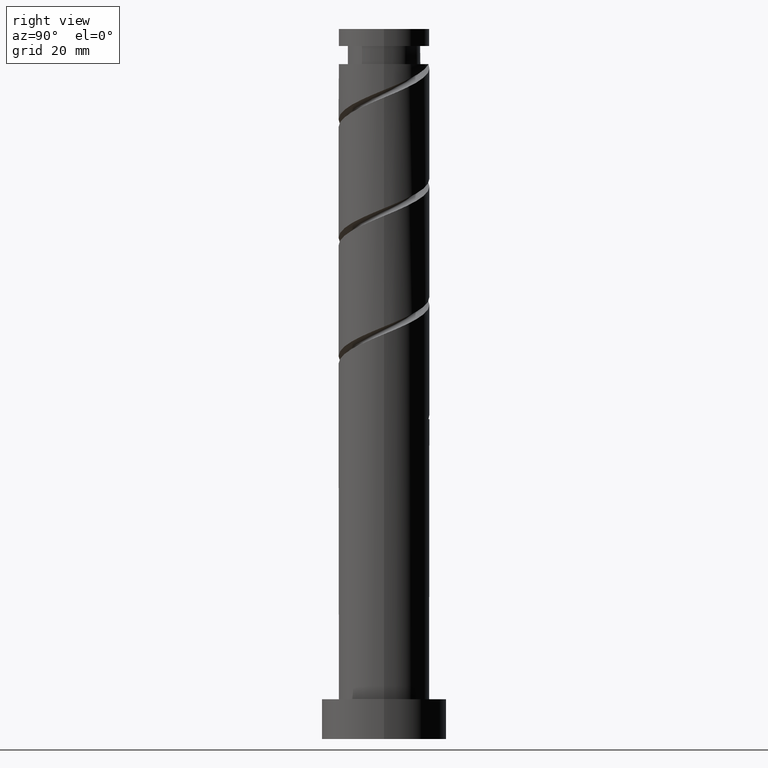
[diagram: clean part render]
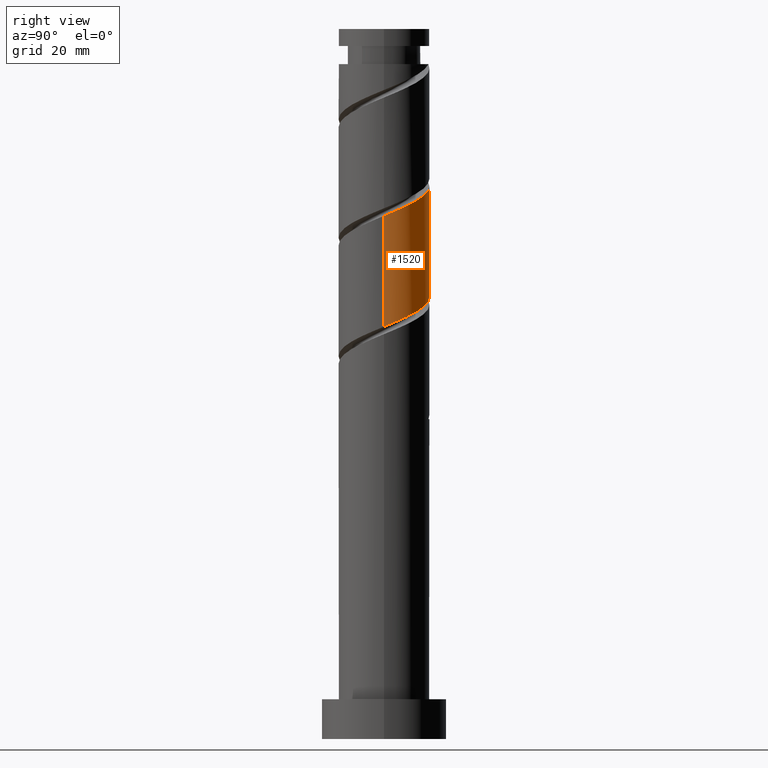
[diagram: same view with one face highlighted and labeled with its STEP entity id]
A machine part, right view. The second image highlights one B-rep face of the part: STEP entity #1520.
In plain terms, the highlighted cylindrical surface (partial cylindrical patch) has radius 8 mm, axis along (-0, -0, -1).
Its self-contained STEP definition (entity closure, byte-faithful):
#26 = ORIENTED_EDGE ( 'NONE', *, *, #1425, .T. ) ;
#30 = CARTESIAN_POINT ( 'NONE',  ( -0.9086303787922844766, 7.948231931362834679, 78.19204006689466269 ) ) ;
#35 = CARTESIAN_POINT ( 'NONE',  ( 0.9086303787922892505, 7.948231931362848002, 96.94204006689464848 ) ) ;
#44 = CARTESIAN_POINT ( 'NONE',  ( 3.320297584678871150, 7.278435542695688376, 95.90037340022796286 ) ) ;
#65 = CARTESIAN_POINT ( 'NONE',  ( -3.936756093006897217, 6.964334244145184982, 99.02537340022796286 ) ) ;
#89 = EDGE_LOOP ( 'NONE', ( #545, #26, #317, #927 ) ) ;
#98 = LINE ( 'NONE', #1048, #875 ) ;
#133 = FACE_OUTER_BOUND ( 'NONE', #89, .T. ) ;
#144 = CARTESIAN_POINT ( 'NONE',  ( 7.804319017355950017, 2.167506644810793137, 73.50454006689464848 ) ) ;
#223 = CARTESIAN_POINT ( 'NONE',  ( -7.587855154630277710, 2.833713911514956330, 81.83787340022796286 ) ) ;
#233 = CARTESIAN_POINT ( 'NONE',  ( 8.000000000000014211, 5.037682535157128258E-15, 92.11057095875773371 ) ) ;
#234 = CARTESIAN_POINT ( 'NONE',  ( -3.320297584678863156, 7.278435542695677718, 79.23370673356129146 ) ) ;
#241 = AXIS2_PLACEMENT_3D ( 'NONE', #355, #569, #816 ) ;
#270 = CARTESIAN_POINT ( 'NONE',  ( 0.3502458872262265710, 8.092144845369723782, 77.67120673356133409 ) ) ;
#283 = CARTESIAN_POINT ( 'NONE',  ( 5.406950929103509829, 5.896175171267123538, 94.85870673356129146 ) ) ;
#285 = CARTESIAN_POINT ( 'NONE',  ( 5.039798274498828334, 6.340813333660067386, 75.58787340022797707 ) ) ;
#290 = CARTESIAN_POINT ( 'NONE',  ( 6.340813333660081597, 5.039798274498832775, 94.33787340022797707 ) ) ;
#304 = CARTESIAN_POINT ( 'NONE',  ( 7.587855154630291921, 2.833713911514957662, 93.29620673356134830 ) ) ;
#317 = ORIENTED_EDGE ( 'NONE', *, *, #522, .F. ) ;
#319 = CARTESIAN_POINT ( 'NONE',  ( -8.000000000000000000, 0.000000000000000000, 125.0000000000000000 ) ) ;
#342 = CARTESIAN_POINT ( 'NONE',  ( -8.000000000000000000, 0.8040302522073736746, 82.68920459962373570 ) ) ;
#349 = CARTESIAN_POINT ( 'NONE',  ( -8.000000000000000000, 8.156247914063984524E-15, 83.02350917503156325 ) ) ;
#351 = CARTESIAN_POINT ( 'NONE',  ( -4.473088524546930955, 6.752552068035405419, 79.75454006689466269 ) ) ;
#355 = CARTESIAN_POINT ( 'NONE',  ( 0.000000000000000000, 0.000000000000000000, 125.0000000000000000 ) ) ;
#377 = CARTESIAN_POINT ( 'NONE',  ( 7.948231931362834679, 0.9086303787922832553, 72.98370673356134830 ) ) ;
#398 = CARTESIAN_POINT ( 'NONE',  ( 7.840000000000014069, 1.591979899370590923, 92.77537340022794865 ) ) ;
#436 = DIRECTION ( 'NONE',  ( -0.000000000000000000, -0.000000000000000000, -1.000000000000000000 ) ) ;
#469 = CARTESIAN_POINT ( 'NONE',  ( -6.340813333660067386, 5.039798274498824782, 80.79620673356127725 ) ) ;
#474 =( BOUNDED_CURVE ( )  B_SPLINE_CURVE ( 2, ( #1439, #342, #1447, #223, #586, #469, #962, #351, #234, #722, #30, #270, #519, #1489, #1387, #285, #628, #1475, #655, #144, #377, #878, #1506 ),
 .UNSPECIFIED., .F., .T. ) 
 B_SPLINE_CURVE_WITH_KNOTS ( ( 3, 2, 2, 2, 2, 2, 2, 2, 2, 2, 2, 3 ),
 ( 0.6795322023138552492, 0.6875000000000000000, 0.6999999999999999556, 0.7125000000000000222, 0.7249999999999999778, 0.7375000000000000444, 0.7500000000000000000, 0.7624999999999999556, 0.7750000000000000222, 0.7874999999999999778, 0.8000000000000000444, 0.8045322023138552492 ),
 .UNSPECIFIED. ) 
 CURVE ( )  GEOMETRIC_REPRESENTATION_ITEM ( )  RATIONAL_B_SPLINE_CURVE ( ( 0.9039174447099321830, 0.9019565955404615920, 0.9090909090909099488, 0.8978984914501261239, 0.9090909090909099488, 0.8978984914501261239, 0.9090909090909099488, 0.8978984914501261239, 0.9090909090909099488, 0.8978984914501261239, 0.9090909090909099488, 0.8978984914501261239, 0.9090909090909099488, 0.8978984914501261239, 0.9090909090909099488, 0.8978984914501261239, 0.9090909090909099488, 0.8978984914501261239, 0.9090909090909099488, 0.8978984914501261239, 0.9090909090909099488, 0.9050328050005743696, 0.9039174447099321830 ) ) 
 REPRESENTATION_ITEM ( '' )  );
#516 = CARTESIAN_POINT ( 'NONE',  ( 8.000000000000014211, 5.037682535157128258E-15, 92.11057095875773371 ) ) ;
#519 = CARTESIAN_POINT ( 'NONE',  ( 1.591979899370593143, 7.840000000000001634, 77.15037340022796286 ) ) ;
#522 = EDGE_CURVE ( 'NONE', #1129, #979, #474, .T. ) ;
#525 = CARTESIAN_POINT ( 'NONE',  ( -1.591979899370590479, 7.840000000000014069, 97.98370673356130567 ) ) ;
#541 = CARTESIAN_POINT ( 'NONE',  ( -0.3502458872262239065, 8.092144845369736217, 97.46287340022796286 ) ) ;
#545 = ORIENTED_EDGE ( 'NONE', *, *, #1144, .F. ) ;
#547 = CARTESIAN_POINT ( 'NONE',  ( 8.000000000000010658, 0.8040302522073770053, 92.44487553416558967 ) ) ;
#569 = DIRECTION ( 'NONE',  ( -0.000000000000000000, -0.000000000000000000, -1.000000000000000000 ) ) ;
#586 = CARTESIAN_POINT ( 'NONE',  ( -6.964334244145172548, 3.936756093006892776, 81.31704006689464848 ) ) ;
#616 = CYLINDRICAL_SURFACE ( 'NONE', #241, 8.000000000000000000 ) ;
#628 = CARTESIAN_POINT ( 'NONE',  ( 5.896175171267119097, 5.406950929103498282, 75.06704006689467690 ) ) ;
#649 =( BOUNDED_CURVE ( )  B_SPLINE_CURVE ( 2, ( #516, #547, #398, #304, #1383, #290, #283, #1040, #44, #784, #35, #541, #525, #1033, #65, #1018, #775, #890, #790, #1511, #1263, #1270, #905 ),
 .UNSPECIFIED., .F., .T. ) 
 B_SPLINE_CURVE_WITH_KNOTS ( ( 3, 2, 2, 2, 2, 2, 2, 2, 2, 2, 2, 3 ),
 ( 0.4295322023138553047, 0.4375000000000000000, 0.4499999999999999556, 0.4625000000000000222, 0.4749999999999999778, 0.4875000000000000444, 0.5000000000000000000, 0.5124999999999999556, 0.5250000000000000222, 0.5374999999999999778, 0.5500000000000000444, 0.5545322023138553602 ),
 .UNSPECIFIED. ) 
 CURVE ( )  GEOMETRIC_REPRESENTATION_ITEM ( )  RATIONAL_B_SPLINE_CURVE ( ( 0.9039174447099390663, 0.9019565955404684754, 0.9090909090909168322, 0.8978984914501328962, 0.9090909090909168322, 0.8978984914501328962, 0.9090909090909168322, 0.8978984914501328962, 0.9090909090909168322, 0.8978984914501328962, 0.9090909090909168322, 0.8978984914501328962, 0.9090909090909168322, 0.8978984914501328962, 0.9090909090909168322, 0.8978984914501328962, 0.9090909090909168322, 0.8978984914501328962, 0.9090909090909168322, 0.8978984914501328962, 0.9090909090909168322, 0.9050328050005810310, 0.9039174447099389553 ) ) 
 REPRESENTATION_ITEM ( '' )  );
#655 = CARTESIAN_POINT ( 'NONE',  ( 7.278435542695677718, 3.320297584678860936, 74.02537340022796286 ) ) ;
#722 = CARTESIAN_POINT ( 'NONE',  ( -2.167506644810794469, 7.804319017355950017, 78.71287340022797707 ) ) ;
#775 = CARTESIAN_POINT ( 'NONE',  ( -5.896175171267125315, 5.406950929103508940, 100.0670400668946485 ) ) ;
#784 = CARTESIAN_POINT ( 'NONE',  ( 2.167506644810801575, 7.804319017355962451, 96.42120673356131988 ) ) ;
#790 = CARTESIAN_POINT ( 'NONE',  ( -7.278435542695688376, 3.320297584678869374, 101.1087067335613199 ) ) ;
#816 = DIRECTION ( 'NONE',  ( -1.000000000000000000, 0.000000000000000000, 0.000000000000000000 ) ) ;
#837 = CARTESIAN_POINT ( 'NONE',  ( -8.000000000000014211, -1.919117156250334311E-15, 102.5272376254243767 ) ) ;
#850 = CARTESIAN_POINT ( 'NONE',  ( 8.000000000000000000, -9.175778903321979631E-15, 72.60684250836490605 ) ) ;
#875 = VECTOR ( 'NONE', #436, 1000.000000000000000 ) ;
#878 = CARTESIAN_POINT ( 'NONE',  ( 8.000000000000001776, 0.4557898995714582679, 72.79635359757220670 ) ) ;
#890 = CARTESIAN_POINT ( 'NONE',  ( -6.752552068035418742, 4.473088524546940725, 100.5878734002279913 ) ) ;
#905 = CARTESIAN_POINT ( 'NONE',  ( -8.000000000000014211, -1.919117156250334311E-15, 102.5272376254243767 ) ) ;
#927 = ORIENTED_EDGE ( 'NONE', *, *, #1433, .F. ) ;
#937 = DIRECTION ( 'NONE',  ( -0.000000000000000000, -0.000000000000000000, -1.000000000000000000 ) ) ;
#962 = CARTESIAN_POINT ( 'NONE',  ( -5.406950929103500947, 5.896175171267117321, 80.27537340022796286 ) ) ;
#979 = VERTEX_POINT ( 'NONE', #850 ) ;
#1018 = CARTESIAN_POINT ( 'NONE',  ( -5.039798274498833663, 6.340813333660080708, 99.54620673356131988 ) ) ;
#1033 = CARTESIAN_POINT ( 'NONE',  ( -2.833713911514958994, 7.587855154630291921, 98.50454006689466269 ) ) ;
#1040 = CARTESIAN_POINT ( 'NONE',  ( 4.473088524546940725, 6.752552068035416077, 95.37954006689464848 ) ) ;
#1048 = CARTESIAN_POINT ( 'NONE',  ( 8.000000000000000000, 9.797174393178825657E-16, 125.0000000000000000 ) ) ;
#1079 = VECTOR ( 'NONE', #937, 1000.000000000000000 ) ;
#1129 = VERTEX_POINT ( 'NONE', #349 ) ;
#1144 = EDGE_CURVE ( 'NONE', #1522, #1374, #649, .T. ) ;
#1263 = CARTESIAN_POINT ( 'NONE',  ( -7.948231931362848002, 0.9086303787922874742, 102.1503734002279629 ) ) ;
#1270 = CARTESIAN_POINT ( 'NONE',  ( -8.000000000000015987, 0.4557898995714509960, 102.3377265362170903 ) ) ;
#1374 = VERTEX_POINT ( 'NONE', #837 ) ;
#1383 = CARTESIAN_POINT ( 'NONE',  ( 6.964334244145185870, 3.936756093006894996, 93.81704006689464848 ) ) ;
#1387 = CARTESIAN_POINT ( 'NONE',  ( 3.936756093006894108, 6.964334244145172548, 76.10870673356131988 ) ) ;
#1414 = LINE ( 'NONE', #319, #1079 ) ;
#1425 = EDGE_CURVE ( 'NONE', #1522, #979, #98, .T. ) ;
#1433 = EDGE_CURVE ( 'NONE', #1374, #1129, #1414, .T. ) ;
#1439 = CARTESIAN_POINT ( 'NONE',  ( -8.000000000000000000, 8.156247914063984524E-15, 83.02350917503156325 ) ) ;
#1447 = CARTESIAN_POINT ( 'NONE',  ( -7.840000000000001634, 1.591979899370591811, 82.35870673356131988 ) ) ;
#1475 = CARTESIAN_POINT ( 'NONE',  ( 6.752552068035406307, 4.473088524546928291, 74.54620673356129146 ) ) ;
#1489 = CARTESIAN_POINT ( 'NONE',  ( 2.833713911514957662, 7.587855154630275933, 76.62954006689463426 ) ) ;
#1506 = CARTESIAN_POINT ( 'NONE',  ( 8.000000000000000000, -9.175778903321979631E-15, 72.60684250836490605 ) ) ;
#1511 = CARTESIAN_POINT ( 'NONE',  ( -7.804319017355960675, 2.167506644810801131, 101.6295400668946627 ) ) ;
#1520 = ADVANCED_FACE ( 'NONE', ( #133 ), #616, .T. ) ;
#1522 = VERTEX_POINT ( 'NONE', #233 ) ;